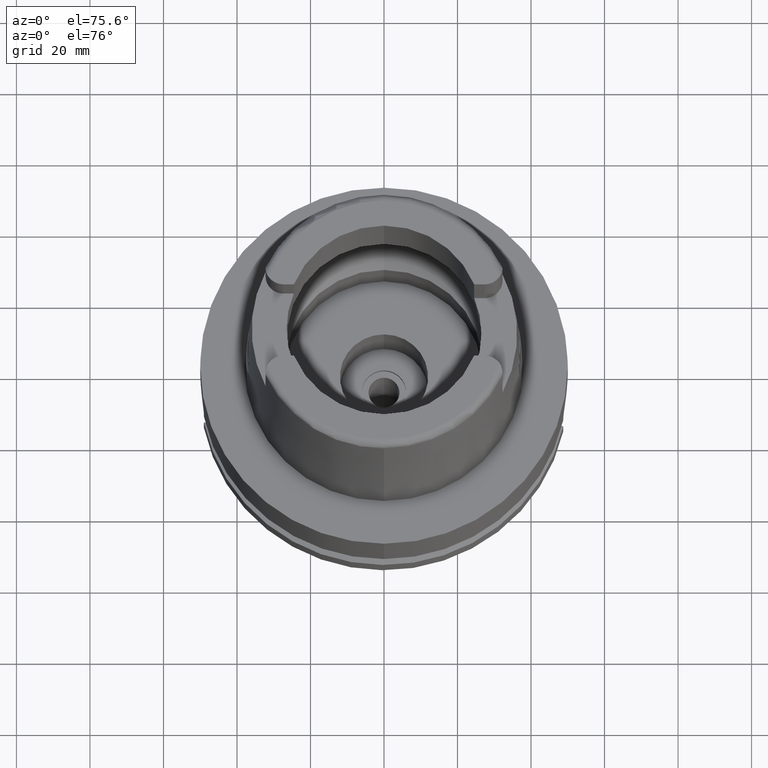
[diagram: clean part render]
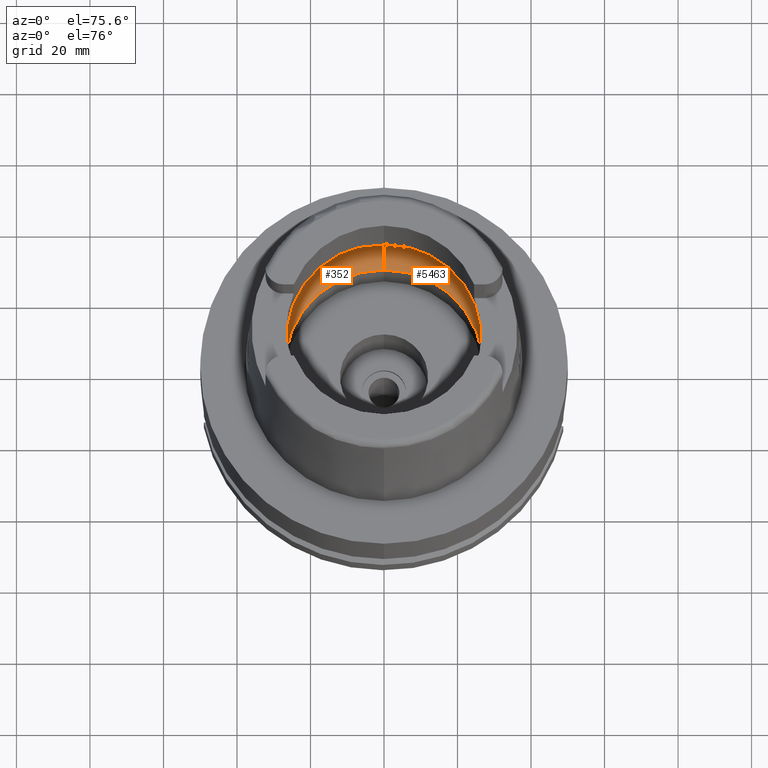
[diagram: same view with one multi-face feature highlighted, each face labeled with its STEP entity id]
A machine part, auxiliary view. The highlighted faces form ONE feature: a constant-radius fillet chain: 2 tangent blend faces with common blend radius 12 mm. The faces share edges in the B-rep.
Their STEP definitions:
[1] entity #5463 (Torus):
#238 = CARTESIAN_POINT ( 'NONE',  ( 31.46287568614665986, -1.684656699965325632, 9.190219625007294724 ) ) ;
#579 = DIRECTION ( 'NONE',  ( 0.0000000000000000000, 0.6166666666667049990, -0.7872243785746061429 ) ) ;
#671 = VERTEX_POINT ( 'NONE', #4468 ) ;
#713 = ORIENTED_EDGE ( 'NONE', *, *, #862, .T. ) ;
#716 = CIRCLE ( 'NONE', #5446, 11.99999999999999822 ) ;
#729 = CARTESIAN_POINT ( 'NONE',  ( 31.40918884336000616, 2.390158196043999705, 9.496624327025999790 ) ) ;
#761 = CARTESIAN_POINT ( 'NONE',  ( 0.0000000000000000000, -19.50000000000000000, 9.496624327025999790 ) ) ;
#765 = VERTEX_POINT ( 'NONE', #2976 ) ;
#767 = EDGE_CURVE ( 'NONE', #4486, #765, #4409, .T. ) ;
#797 = AXIS2_PLACEMENT_3D ( 'NONE', #761, #2491, #4211 ) ;
#862 = EDGE_CURVE ( 'NONE', #4486, #671, #1058, .T. ) ;
#1058 = CIRCLE ( 'NONE', #797, 11.99999999999999822 ) ;
#1110 = B_SPLINE_CURVE_WITH_KNOTS ( 'NONE', 3,
 ( #729, #5037, #5163, #2910 ),
 .UNSPECIFIED., .F., .F.,
 ( 4, 4 ),
 ( 0.0000000000000000000, 1.000000000000000000 ),
 .UNSPECIFIED. ) ;
#1208 = DIRECTION ( 'NONE',  ( 0.0000000000000000000, 0.0000000000000000000, 1.000000000000000000 ) ) ;
#1230 = VERTEX_POINT ( 'NONE', #1838 ) ;
#1233 = AXIS2_PLACEMENT_3D ( 'NONE', #1986, #1441, #2403 ) ;
#1441 = DIRECTION ( 'NONE',  ( 0.0000000000000000000, 0.0000000000000000000, -1.000000000000000000 ) ) ;
#1454 = CARTESIAN_POINT ( 'NONE',  ( 0.0000000000000000000, -26.89999999999999858, 0.04993178413041000213 ) ) ;
#1521 = FACE_OUTER_BOUND ( 'NONE', #2199, .T. ) ;
#1541 = VERTEX_POINT ( 'NONE', #5532 ) ;
#1699 = CARTESIAN_POINT ( 'NONE',  ( 31.48971910754000447, 0.0000000000000000000, 9.000000000000000000 ) ) ;
#1738 = ORIENTED_EDGE ( 'NONE', *, *, #3014, .F. ) ;
#1751 = ORIENTED_EDGE ( 'NONE', *, *, #4754, .F. ) ;
#1818 = ORIENTED_EDGE ( 'NONE', *, *, #4050, .F. ) ;
#1838 = CARTESIAN_POINT ( 'NONE',  ( 0.0000000000000000000, 31.50000000000000000, 9.496624327025999790 ) ) ;
#1956 = CIRCLE ( 'NONE', #5132, 31.50000000000000000 ) ;
#1986 = CARTESIAN_POINT ( 'NONE',  ( 0.0000000000000000000, 0.0000000000000000000, 9.496624327025999790 ) ) ;
#2076 = ORIENTED_EDGE ( 'NONE', *, *, #767, .F. ) ;
#2096 = DIRECTION ( 'NONE',  ( 0.0000000000000000000, 1.000000000000000000, 0.0000000000000000000 ) ) ;
#2199 = EDGE_LOOP ( 'NONE', ( #3793, #1818, #4019, #2076, #713, #1751, #1738 ) ) ;
#2271 = DIRECTION ( 'NONE',  ( 0.0000000000000000000, 1.000000000000000000, 0.0000000000000000000 ) ) ;
#2326 = TOROIDAL_SURFACE ( 'NONE', #4862, 19.50000000000000000, 12.00000000000000000 ) ;
#2403 = DIRECTION ( 'NONE',  ( 0.9971171061384295209, -0.07587803796965221503, 0.0000000000000000000 ) ) ;
#2491 = DIRECTION ( 'NONE',  ( -1.000000000000000000, 0.0000000000000000000, 0.0000000000000000000 ) ) ;
#2518 = CARTESIAN_POINT ( 'NONE',  ( 0.0000000000000000000, 0.0000000000000000000, 9.496624327025999790 ) ) ;
#2613 = DIRECTION ( 'NONE',  ( 0.0000000000000000000, 0.0000000000000000000, -1.000000000000000000 ) ) ;
#2661 = EDGE_CURVE ( 'NONE', #765, #1230, #716, .T. ) ;
#2752 = CARTESIAN_POINT ( 'NONE',  ( 31.40918884336000616, 2.390158196043999705, 9.496624327025999790 ) ) ;
#2910 = CARTESIAN_POINT ( 'NONE',  ( 31.48971910754000447, 0.0000000000000000000, 9.000000000000000000 ) ) ;
#2956 = CIRCLE ( 'NONE', #1233, 31.49999999999998934 ) ;
#2976 = CARTESIAN_POINT ( 'NONE',  ( 0.0000000000000000000, 26.89999999999999858, 0.04993178413040000319 ) ) ;
#3014 = EDGE_CURVE ( 'NONE', #4907, #1541, #4584, .T. ) ;
#3137 = AXIS2_PLACEMENT_3D ( 'NONE', #5106, #1208, #4709 ) ;
#3178 = DIRECTION ( 'NONE',  ( 1.000000000000000000, 0.0000000000000000000, 0.0000000000000000000 ) ) ;
#3298 = CARTESIAN_POINT ( 'NONE',  ( 31.48971910753999026, -0.8697454017312684638, 8.999999999999998224 ) ) ;
#3626 = CARTESIAN_POINT ( 'NONE',  ( 0.0000000000000000000, 19.50000000000000000, 9.496624327025999790 ) ) ;
#3655 = CARTESIAN_POINT ( 'NONE',  ( 31.40918884336000616, -2.390158196043999705, 9.496624327025999790 ) ) ;
#3793 = ORIENTED_EDGE ( 'NONE', *, *, #5601, .F. ) ;
#3836 = DIRECTION ( 'NONE',  ( 0.0000000000000000000, 0.0000000000000000000, 1.000000000000000000 ) ) ;
#4019 = ORIENTED_EDGE ( 'NONE', *, *, #2661, .F. ) ;
#4050 = EDGE_CURVE ( 'NONE', #1230, #4406, #1956, .T. ) ;
#4211 = DIRECTION ( 'NONE',  ( 0.0000000000000000000, -0.6166666666667049990, -0.7872243785746061429 ) ) ;
#4406 = VERTEX_POINT ( 'NONE', #2752 ) ;
#4409 = CIRCLE ( 'NONE', #3137, 26.89999999999999858 ) ;
#4422 = CARTESIAN_POINT ( 'NONE',  ( 0.0000000000000000000, 0.0000000000000000000, 9.496624327025999790 ) ) ;
#4468 = CARTESIAN_POINT ( 'NONE',  ( 0.0000000000000000000, -31.50000000000000000, 9.496624327025999790 ) ) ;
#4486 = VERTEX_POINT ( 'NONE', #1454 ) ;
#4549 = CARTESIAN_POINT ( 'NONE',  ( 31.48971910754000447, 0.0000000000000000000, 9.000000000000000000 ) ) ;
#4584 = B_SPLINE_CURVE_WITH_KNOTS ( 'NONE', 3,
 ( #4549, #3298, #238, #3655 ),
 .UNSPECIFIED., .F., .F.,
 ( 4, 4 ),
 ( 0.0000000000000000000, 1.000000000000000000 ),
 .UNSPECIFIED. ) ;
#4709 = DIRECTION ( 'NONE',  ( 0.0000000000000000000, -1.000000000000000000, 0.0000000000000000000 ) ) ;
#4754 = EDGE_CURVE ( 'NONE', #1541, #671, #2956, .T. ) ;
#4862 = AXIS2_PLACEMENT_3D ( 'NONE', #2518, #3836, #2096 ) ;
#4907 = VERTEX_POINT ( 'NONE', #1699 ) ;
#5037 = CARTESIAN_POINT ( 'NONE',  ( 31.46287568614665986, 1.684656700008886121, 9.190219625026216477 ) ) ;
#5106 = CARTESIAN_POINT ( 'NONE',  ( 0.0000000000000000000, 0.0000000000000000000, 0.04993178413040000319 ) ) ;
#5132 = AXIS2_PLACEMENT_3D ( 'NONE', #4422, #2613, #2271 ) ;
#5163 = CARTESIAN_POINT ( 'NONE',  ( 31.48971910753999026, 0.8697454017787721314, 9.000000000000001776 ) ) ;
#5446 = AXIS2_PLACEMENT_3D ( 'NONE', #3626, #3178, #579 ) ;
#5463 = ADVANCED_FACE ( 'NONE', ( #1521 ), #2326, .F. ) ;
#5532 = CARTESIAN_POINT ( 'NONE',  ( 31.40918884336000616, -2.390158196043999705, 9.496624327025999790 ) ) ;
#5601 = EDGE_CURVE ( 'NONE', #4406, #4907, #1110, .T. ) ;
[2] entity #352 (Torus):
#39 = AXIS2_PLACEMENT_3D ( 'NONE', #1657, #1281, #3825 ) ;
#142 = CIRCLE ( 'NONE', #4308, 31.49999999999998934 ) ;
#352 = ADVANCED_FACE ( 'NONE', ( #5182 ), #2962, .F. ) ;
#367 = ORIENTED_EDGE ( 'NONE', *, *, #5311, .F. ) ;
#494 = DIRECTION ( 'NONE',  ( 0.0000000000000000000, 0.0000000000000000000, 1.000000000000000000 ) ) ;
#579 = DIRECTION ( 'NONE',  ( 0.0000000000000000000, 0.6166666666667049990, -0.7872243785746061429 ) ) ;
#671 = VERTEX_POINT ( 'NONE', #4468 ) ;
#716 = CIRCLE ( 'NONE', #5446, 11.99999999999999822 ) ;
#761 = CARTESIAN_POINT ( 'NONE',  ( 0.0000000000000000000, -19.50000000000000000, 9.496624327025999790 ) ) ;
#765 = VERTEX_POINT ( 'NONE', #2976 ) ;
#797 = AXIS2_PLACEMENT_3D ( 'NONE', #761, #2491, #4211 ) ;
#862 = EDGE_CURVE ( 'NONE', #4486, #671, #1058, .T. ) ;
#1006 = DIRECTION ( 'NONE',  ( -0.9971171061384295209, 0.07587803796965221503, 0.0000000000000000000 ) ) ;
#1058 = CIRCLE ( 'NONE', #797, 11.99999999999999822 ) ;
#1145 = ORIENTED_EDGE ( 'NONE', *, *, #862, .F. ) ;
#1230 = VERTEX_POINT ( 'NONE', #1838 ) ;
#1266 = B_SPLINE_CURVE_WITH_KNOTS ( 'NONE', 3,
 ( #2387, #1508, #1567, #3265 ),
 .UNSPECIFIED., .F., .F.,
 ( 4, 4 ),
 ( 0.0000000000000000000, 1.000000000000000000 ),
 .UNSPECIFIED. ) ;
#1270 = VERTEX_POINT ( 'NONE', #4729 ) ;
#1281 = DIRECTION ( 'NONE',  ( 0.0000000000000000000, 0.0000000000000000000, 1.000000000000000000 ) ) ;
#1387 = ORIENTED_EDGE ( 'NONE', *, *, #2661, .T. ) ;
#1454 = CARTESIAN_POINT ( 'NONE',  ( 0.0000000000000000000, -26.89999999999999858, 0.04993178413041000213 ) ) ;
#1508 = CARTESIAN_POINT ( 'NONE',  ( -31.46287568614665986, -1.684656700028137832, 9.190219625034576012 ) ) ;
#1563 = EDGE_CURVE ( 'NONE', #1841, #1270, #4933, .T. ) ;
#1567 = CARTESIAN_POINT ( 'NONE',  ( -31.48971910754000447, -0.8697454017997489073, 8.999999999999998224 ) ) ;
#1591 = CIRCLE ( 'NONE', #39, 26.89999999999999858 ) ;
#1631 = CARTESIAN_POINT ( 'NONE',  ( -31.48971910754000447, 0.0000000000000000000, 9.000000000000000000 ) ) ;
#1657 = CARTESIAN_POINT ( 'NONE',  ( 0.0000000000000000000, 0.0000000000000000000, 0.04993178413041000213 ) ) ;
#1838 = CARTESIAN_POINT ( 'NONE',  ( 0.0000000000000000000, 31.50000000000000000, 9.496624327025999790 ) ) ;
#1841 = VERTEX_POINT ( 'NONE', #4793 ) ;
#1872 = AXIS2_PLACEMENT_3D ( 'NONE', #4313, #494, #4285 ) ;
#2056 = AXIS2_PLACEMENT_3D ( 'NONE', #5515, #4671, #4208 ) ;
#2153 = ORIENTED_EDGE ( 'NONE', *, *, #4615, .F. ) ;
#2387 = CARTESIAN_POINT ( 'NONE',  ( -31.40918884336000616, -2.390158196043999705, 9.496624327025999790 ) ) ;
#2472 = VERTEX_POINT ( 'NONE', #3524 ) ;
#2491 = DIRECTION ( 'NONE',  ( -1.000000000000000000, 0.0000000000000000000, 0.0000000000000000000 ) ) ;
#2504 = CIRCLE ( 'NONE', #2056, 31.50000000000000000 ) ;
#2661 = EDGE_CURVE ( 'NONE', #765, #1230, #716, .T. ) ;
#2737 = DIRECTION ( 'NONE',  ( 0.0000000000000000000, 0.0000000000000000000, -1.000000000000000000 ) ) ;
#2866 = CARTESIAN_POINT ( 'NONE',  ( -31.40918884336000616, 2.390158196043999705, 9.496624327025999790 ) ) ;
#2962 = TOROIDAL_SURFACE ( 'NONE', #1872, 19.50000000000000000, 12.00000000000000000 ) ;
#2976 = CARTESIAN_POINT ( 'NONE',  ( 0.0000000000000000000, 26.89999999999999858, 0.04993178413040000319 ) ) ;
#3178 = DIRECTION ( 'NONE',  ( 1.000000000000000000, 0.0000000000000000000, 0.0000000000000000000 ) ) ;
#3265 = CARTESIAN_POINT ( 'NONE',  ( -31.48971910754000447, 0.0000000000000000000, 9.000000000000000000 ) ) ;
#3294 = CARTESIAN_POINT ( 'NONE',  ( -31.46287568614665986, 1.684656699916923683, 9.190219624986275093 ) ) ;
#3377 = CARTESIAN_POINT ( 'NONE',  ( -31.48971910754000447, 0.8697454016785111097, 9.000000000000001776 ) ) ;
#3524 = CARTESIAN_POINT ( 'NONE',  ( -31.40918884336000616, -2.390158196043999705, 9.496624327025999790 ) ) ;
#3616 = ORIENTED_EDGE ( 'NONE', *, *, #1563, .F. ) ;
#3626 = CARTESIAN_POINT ( 'NONE',  ( 0.0000000000000000000, 19.50000000000000000, 9.496624327025999790 ) ) ;
#3768 = EDGE_CURVE ( 'NONE', #765, #4486, #1591, .T. ) ;
#3825 = DIRECTION ( 'NONE',  ( 0.0000000000000000000, 1.000000000000000000, 0.0000000000000000000 ) ) ;
#4208 = DIRECTION ( 'NONE',  ( 0.0000000000000000000, -1.000000000000000000, 0.0000000000000000000 ) ) ;
#4211 = DIRECTION ( 'NONE',  ( 0.0000000000000000000, -0.6166666666667049990, -0.7872243785746061429 ) ) ;
#4285 = DIRECTION ( 'NONE',  ( 0.0000000000000000000, 1.000000000000000000, 0.0000000000000000000 ) ) ;
#4308 = AXIS2_PLACEMENT_3D ( 'NONE', #4922, #2737, #1006 ) ;
#4313 = CARTESIAN_POINT ( 'NONE',  ( 0.0000000000000000000, 0.0000000000000000000, 9.496624327025999790 ) ) ;
#4468 = CARTESIAN_POINT ( 'NONE',  ( 0.0000000000000000000, -31.50000000000000000, 9.496624327025999790 ) ) ;
#4486 = VERTEX_POINT ( 'NONE', #1454 ) ;
#4615 = EDGE_CURVE ( 'NONE', #2472, #1841, #1266, .T. ) ;
#4624 = EDGE_LOOP ( 'NONE', ( #5555, #1145, #5054, #1387, #367, #3616, #2153 ) ) ;
#4671 = DIRECTION ( 'NONE',  ( 0.0000000000000000000, 0.0000000000000000000, -1.000000000000000000 ) ) ;
#4729 = CARTESIAN_POINT ( 'NONE',  ( -31.40918884336000616, 2.390158196043999705, 9.496624327025999790 ) ) ;
#4793 = CARTESIAN_POINT ( 'NONE',  ( -31.48971910754000447, 0.0000000000000000000, 9.000000000000000000 ) ) ;
#4922 = CARTESIAN_POINT ( 'NONE',  ( 0.0000000000000000000, 0.0000000000000000000, 9.496624327025999790 ) ) ;
#4933 = B_SPLINE_CURVE_WITH_KNOTS ( 'NONE', 3,
 ( #1631, #3377, #3294, #2866 ),
 .UNSPECIFIED., .F., .F.,
 ( 4, 4 ),
 ( 0.0000000000000000000, 1.000000000000000000 ),
 .UNSPECIFIED. ) ;
#5023 = EDGE_CURVE ( 'NONE', #671, #2472, #2504, .T. ) ;
#5054 = ORIENTED_EDGE ( 'NONE', *, *, #3768, .F. ) ;
#5182 = FACE_OUTER_BOUND ( 'NONE', #4624, .T. ) ;
#5311 = EDGE_CURVE ( 'NONE', #1270, #1230, #142, .T. ) ;
#5446 = AXIS2_PLACEMENT_3D ( 'NONE', #3626, #3178, #579 ) ;
#5515 = CARTESIAN_POINT ( 'NONE',  ( 0.0000000000000000000, 0.0000000000000000000, 9.496624327025999790 ) ) ;
#5555 = ORIENTED_EDGE ( 'NONE', *, *, #5023, .F. ) ;